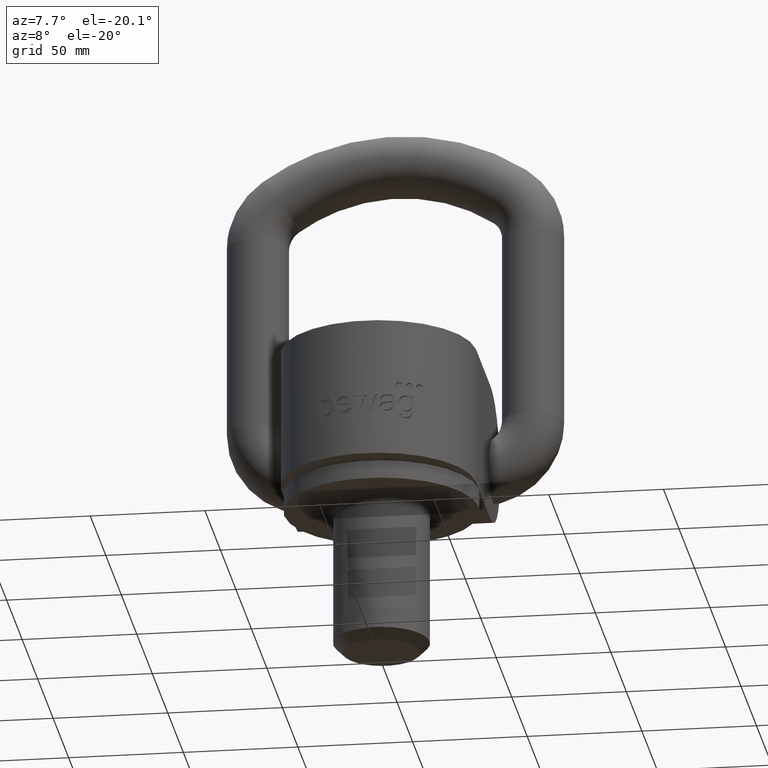
[diagram: clean part render]
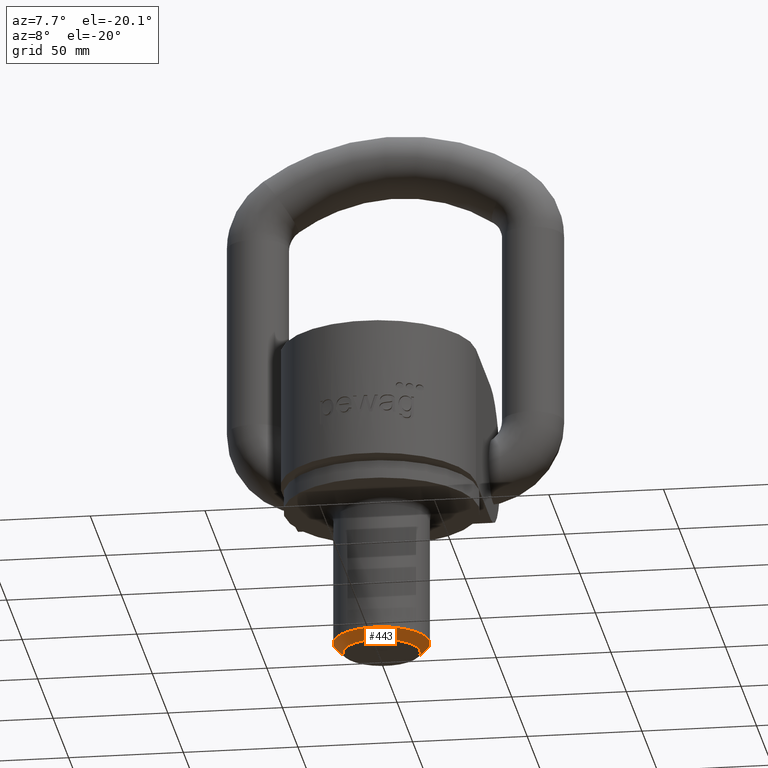
[diagram: same view with one face highlighted and labeled with its STEP entity id]
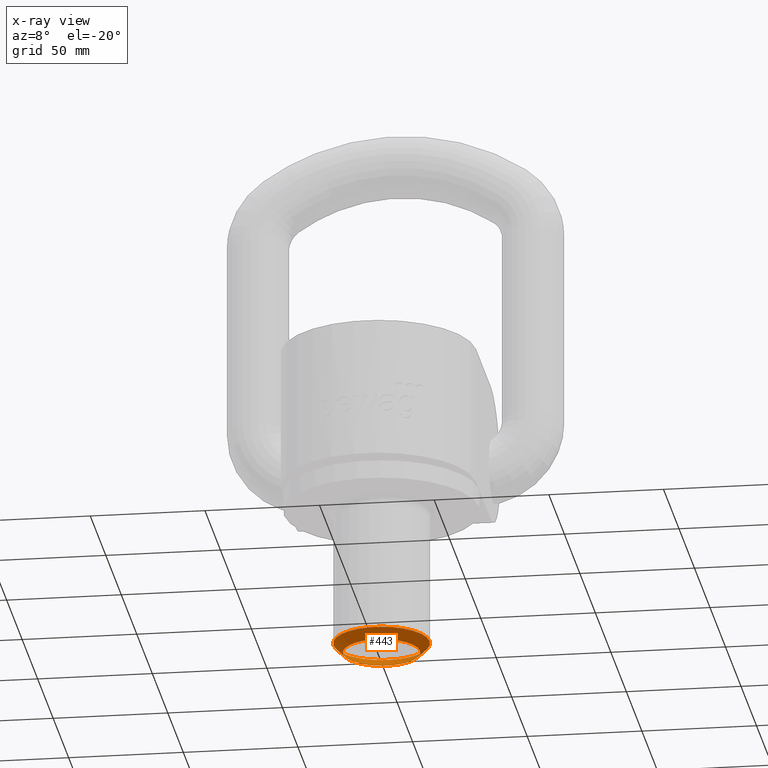
[diagram: x-ray of the same camera — body ghosted, the highlighted face saturated]
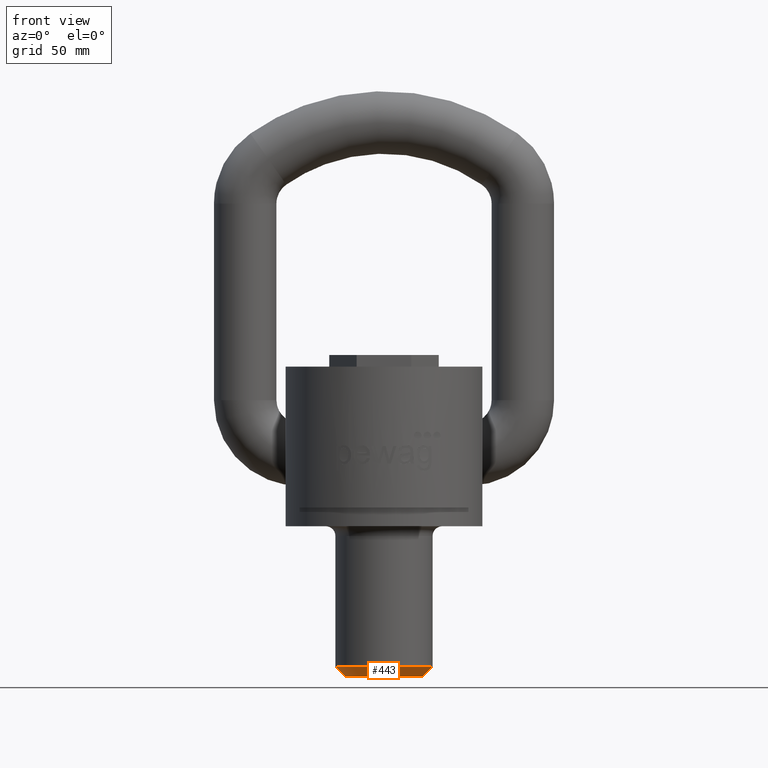
[diagram: same view with one face highlighted and labeled with its STEP entity id]
A machine part, auxiliary view. The second image highlights one B-rep face of the part: STEP entity #443.
The next image is the same camera in x-ray: the body ghosted, the highlighted face saturated — about 0% of this face is hidden behind the body in this view.
A second angle (front view) of the same face is appended — the face is thin or edge-on in the first view.
In plain terms, the highlighted conical surface has half-angle 45 deg.
Its self-contained STEP definition (entity closure, byte-faithful):
#237=CONICAL_SURFACE('',#2535,16.8,45.);
#443=ADVANCED_FACE('',(#601,#602),#237,.T.);
#601=FACE_BOUND('',#679,.T.);
#602=FACE_BOUND('',#680,.T.);
#679=EDGE_LOOP('',(#1334));
#680=EDGE_LOOP('',(#1335));
#1129=CIRCLE('',#2529,21.);
#1131=CIRCLE('',#2532,16.8);
#1334=ORIENTED_EDGE('',*,*,#2105,.F.);
#1335=ORIENTED_EDGE('',*,*,#2107,.F.);
#1872=VERTEX_POINT('',#3879);
#1874=VERTEX_POINT('',#3884);
#2105=EDGE_CURVE('',#1872,#1872,#1129,.T.);
#2107=EDGE_CURVE('',#1874,#1874,#1131,.T.);
#2529=AXIS2_PLACEMENT_3D('',#3878,#2789,#2790);
#2532=AXIS2_PLACEMENT_3D('',#3883,#2795,#2796);
#2535=AXIS2_PLACEMENT_3D('',#3887,#2801,#2802);
#2789=DIRECTION('',(0.,0.,1.));
#2790=DIRECTION('',(-1.,0.,0.));
#2795=DIRECTION('',(0.,0.,-1.));
#2796=DIRECTION('',(-1.,0.,0.));
#2801=DIRECTION('',(0.,0.,1.));
#2802=DIRECTION('',(1.,0.,-1.36484931233423E-17));
#3878=CARTESIAN_POINT('',(0.,0.,-68.7999999999999));
#3879=CARTESIAN_POINT('',(-21.,0.,-68.7999999999999));
#3883=CARTESIAN_POINT('',(0.,0.,-72.9999999999999));
#3884=CARTESIAN_POINT('',(-16.8,0.,-72.9999999999999));
#3887=CARTESIAN_POINT('',(0.,0.,-72.9999999999999));